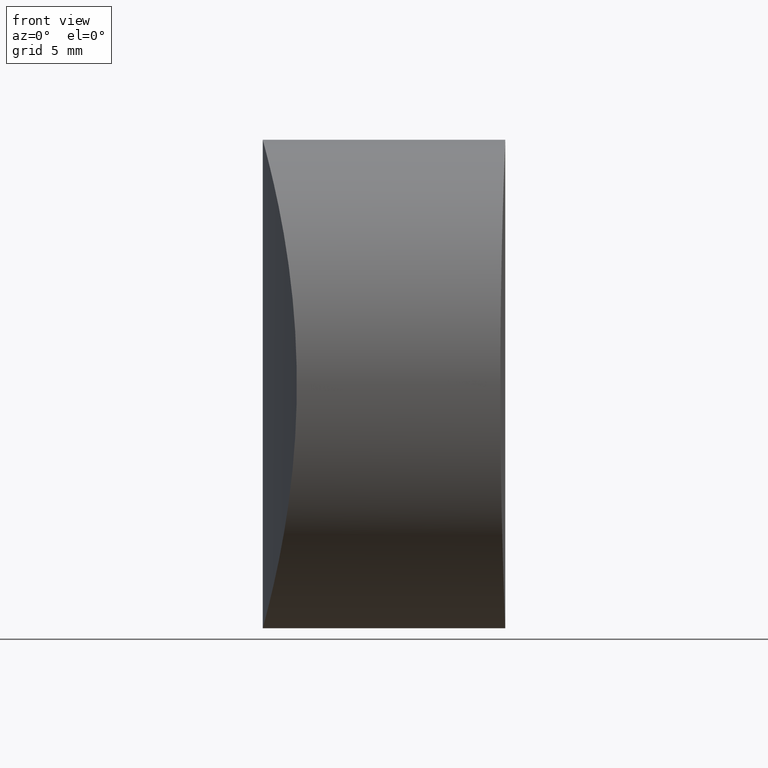
[diagram: clean part render]
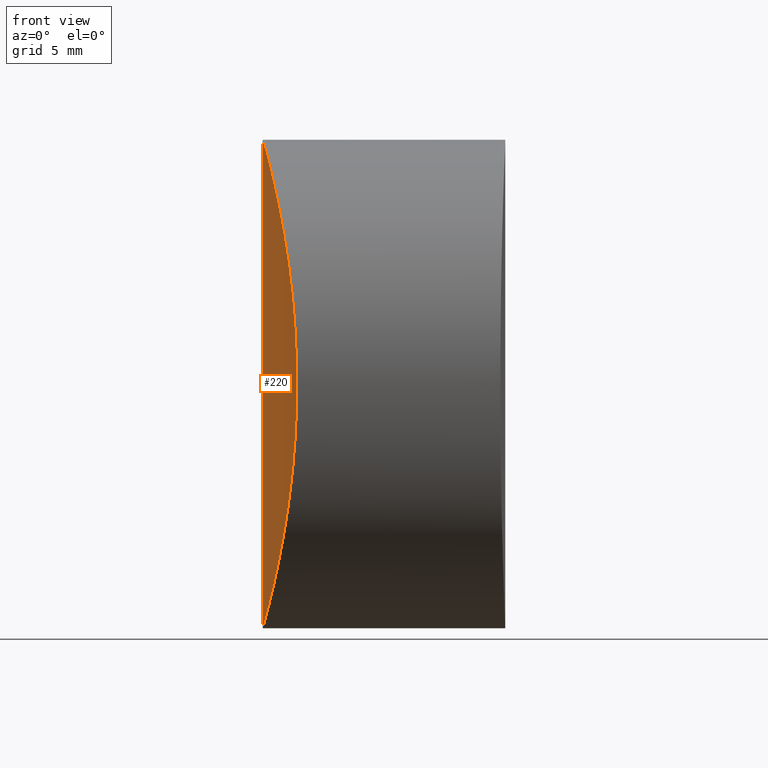
[diagram: same view with one face highlighted and labeled with its STEP entity id]
A machine part, front view. The second image highlights one B-rep face of the part: STEP entity #220.
In plain terms, the highlighted cylindrical surface (partial cylindrical patch) has radius 42.699 mm, axis along (-0, -0, -1).
Its self-contained STEP definition (entity closure, byte-faithful):
#3 = CARTESIAN_POINT ( 'NONE',  ( 0.3116643519996714629, -5.198488700896360726, 1.190362278175256749 ) ) ;
#6 = CARTESIAN_POINT ( 'NONE',  ( 0.02115179972341110770, -1.539396594609847346, 0.07653723740194499914 ) ) ;
#8 = CARTESIAN_POINT ( 'NONE',  ( 0.02116038784417108298, -1.543215929523041430, 23.32345793427557012 ) ) ;
#10 = VERTEX_POINT ( 'NONE', #57 ) ;
#13 = CARTESIAN_POINT ( 'NONE',  ( 1.221814119183032732, -10.15072585469899202, 17.56811078998464026 ) ) ;
#16 = CARTESIAN_POINT ( 'NONE',  ( 1.522361716051486402, -11.30055644154991867, 8.644748249691609487 ) ) ;
#36 = CARTESIAN_POINT ( 'NONE',  ( 0.7029013807431773175, -7.721563527596935650, 2.901477486518047932 ) ) ;
#38 = CARTESIAN_POINT ( 'NONE',  ( 1.020827543885018729, -9.291257141828978661, 4.547890616966048682 ) ) ;
#41 = CARTESIAN_POINT ( 'NONE',  ( 1.549607479163048973, -11.39904056826204481, 14.36420531174572268 ) ) ;
#54 = B_SPLINE_CURVE_WITH_KNOTS ( 'NONE', 3,
 ( #200, #145, #6, #283, #61, #286, #124, #3, #319, #65, #232, #36, #357, #181, #38, #325, #76, #152, #206, #174, #126, #16, #102, #265, #297, #158, #360, #41, #108, #155, #353, #267, #13, #211, #329, #204, #291, #79, #269, #133, #214, #292, #150, #72, #98, #71, #68, #8, #129, #323 ),
 .UNSPECIFIED., .F., .F.,
 ( 4, 2, 2, 2, 2, 2, 2, 2, 2, 2, 2, 2, 2, 2, 2, 2, 2, 2, 2, 2, 2, 2, 2, 2, 4 ),
 ( 0.01836548850541894554, 0.02066126398292433136, 0.02180915172167702254, 0.02295703946042971372, 0.02525281493793509954, 0.02640070267668779072, 0.02754859041544047843, 0.02984436589294586079, 0.03099225363169855196, 0.03214014137045124314, 0.03328802910920393432, 0.03443591684795662550, 0.03673169232546200091, 0.03902746780296738327, 0.04017535554172008139, 0.04132324328047276563, 0.04361901875797814798, 0.04476690649673083916, 0.04591479423548353034, 0.04821056971298891269, 0.04935845745174159693, 0.05050634519049428117, 0.05165423292924697929, 0.05280212066799966353, 0.05509789614550504588 ),
 .UNSPECIFIED. ) ;
#57 = CARTESIAN_POINT ( 'NONE',  ( 2.825357735624603731E-15, 0.000000000000000000, 23.39999999999999858 ) ) ;
#61 = CARTESIAN_POINT ( 'NONE',  ( 0.1064519128507704498, -3.035780601069037132, 0.3941506981484312888 ) ) ;
#65 = CARTESIAN_POINT ( 'NONE',  ( 0.5469979845961249199, -6.820285741709247951, 2.185839507605463528 ) ) ;
#68 = CARTESIAN_POINT ( 'NONE',  ( 0.08243284053290254876, -2.678904931896245678, 23.09572467220113623 ) ) ;
#71 = CARTESIAN_POINT ( 'NONE',  ( 0.1078811615868372209, -3.055596207715884916, 23.00046582037515464 ) ) ;
#72 = CARTESIAN_POINT ( 'NONE',  ( 0.2005206989076388779, -4.148331975707988839, 22.64651442230587719 ) ) ;
#76 = CARTESIAN_POINT ( 'NONE',  ( 1.218775036194221340, -10.13064655305768547, 5.834398369266911466 ) ) ;
#79 = CARTESIAN_POINT ( 'NONE',  ( 0.7036711933648762685, -7.739240291017467577, 20.50737220546450601 ) ) ;
#98 = CARTESIAN_POINT ( 'NONE',  ( 0.1668844223539996119, -3.789355694864593893, 22.77600918019988896 ) ) ;
#102 = CARTESIAN_POINT ( 'NONE',  ( 1.548705905361870583, -11.39579333191930210, 9.021389577117204794 ) ) ;
#108 = CARTESIAN_POINT ( 'NONE',  ( 1.523814740385370126, -11.30584735335096092, 14.73577845390030205 ) ) ;
#115 = LINE ( 'NONE', #247, #368 ) ;
#124 = CARTESIAN_POINT ( 'NONE',  ( 0.1994450068612352300, -4.137499626896718574, 0.7493018810777755112 ) ) ;
#126 = CARTESIAN_POINT ( 'NONE',  ( 1.461437354802844757, -11.07617006637357449, 7.911122091279811031 ) ) ;
#129 = CARTESIAN_POINT ( 'NONE',  ( 2.801984989517225522E-15, -0.7765011190128663365, 23.40000000000000213 ) ) ;
#133 = CARTESIAN_POINT ( 'NONE',  ( 0.4506842129636313143, -6.195859913576227562, 21.63221658213782561 ) ) ;
#144 = EDGE_LOOP ( 'NONE', ( #358, #347 ) ) ;
#145 = CARTESIAN_POINT ( 'NONE',  ( 5.393482291641757409E-16, -0.7765436336446470689, -2.454701481142962383E-15 ) ) ;
#150 = CARTESIAN_POINT ( 'NONE',  ( 0.2749762479042691110, -4.850939060395880631, 22.35378929821485627 ) ) ;
#152 = CARTESIAN_POINT ( 'NONE',  ( 1.308429559035131584, -10.49093614518938011, 6.506201691344067228 ) ) ;
#155 = CARTESIAN_POINT ( 'NONE',  ( 1.462974869590095928, -11.08189049689003269, 15.47224577849542548 ) ) ;
#158 = CARTESIAN_POINT ( 'NONE',  ( 1.634233368835979361, -11.69998044991746866, 12.47683278729245870 ) ) ;
#174 = CARTESIAN_POINT ( 'NONE',  ( 1.426772311235827928, -10.94672059868823055, 7.552220241446521598 ) ) ;
#181 = CARTESIAN_POINT ( 'NONE',  ( 0.9148307797964319033, -8.808348260449010425, 3.961864767983786617 ) ) ;
#187 = AXIS2_PLACEMENT_3D ( 'NONE', #333, #308, #268 ) ;
#200 = CARTESIAN_POINT ( 'NONE',  ( 5.214281190802850347E-16, 2.070248622887366721E-31, -2.123988307714478201E-15 ) ) ;
#204 = CARTESIAN_POINT ( 'NONE',  ( 0.9157846222239869327, -8.799390160919511317, 19.42056987458116524 ) ) ;
#206 = CARTESIAN_POINT ( 'NONE',  ( 1.350269273977950490, -10.65410426107503561, 6.849759677567113236 ) ) ;
#211 = CARTESIAN_POINT ( 'NONE',  ( 1.073035159634678992, -9.514780494102001995, 18.51941654793526126 ) ) ;
#214 = CARTESIAN_POINT ( 'NONE',  ( 0.4035677270769945091, -5.866498795797997268, 21.83013036535875528 ) ) ;
#220 = ADVANCED_FACE ( 'NONE', ( #241 ), #271, .T. ) ;
#221 = CARTESIAN_POINT ( 'NONE',  ( 5.214281190802850347E-16, 2.070248622887366721E-31, -2.123988307714478201E-15 ) ) ;
#232 = CARTESIAN_POINT ( 'NONE',  ( 0.5984160714061161901, -7.129914124341361514, 2.415557835255714991 ) ) ;
#240 = EDGE_CURVE ( 'NONE', #10, #258, #115, .T. ) ;
#241 = FACE_OUTER_BOUND ( 'NONE', #144, .T. ) ;
#247 = CARTESIAN_POINT ( 'NONE',  ( 0.000000000000000000, 0.000000000000000000, 23.39999999999999858 ) ) ;
#258 = VERTEX_POINT ( 'NONE', #221 ) ;
#265 = CARTESIAN_POINT ( 'NONE',  ( 1.612214532834173042, -11.62348897410736015, 10.15703470085185955 ) ) ;
#267 = CARTESIAN_POINT ( 'NONE',  ( 1.312541627068786187, -10.50989852101694133, 16.89792702999298513 ) ) ;
#268 = DIRECTION ( 'NONE',  ( -1.000000000000000000, 0.000000000000000000, 0.000000000000000000 ) ) ;
#269 = CARTESIAN_POINT ( 'NONE',  ( 0.5984887967096099715, -7.153224521909646860, 20.99041463831230203 ) ) ;
#271 = CYLINDRICAL_SURFACE ( 'NONE', #187, 42.69899999999999807 ) ;
#279 = DIRECTION ( 'NONE',  ( -0.000000000000000000, -0.000000000000000000, -1.000000000000000000 ) ) ;
#283 = CARTESIAN_POINT ( 'NONE',  ( 0.08153988786952012791, -2.664143682556236126, 0.3009432163908508095 ) ) ;
#286 = CARTESIAN_POINT ( 'NONE',  ( 0.1653638723635256491, -3.772388391425766319, 0.6181554731064370367 ) ) ;
#291 = CARTESIAN_POINT ( 'NONE',  ( 0.8626066301634506273, -8.543741043546008385, 19.70239966152351485 ) ) ;
#292 = CARTESIAN_POINT ( 'NONE',  ( 0.3157975377854589372, -5.194569117977690276, 22.19055770771102587 ) ) ;
#297 = CARTESIAN_POINT ( 'NONE',  ( 1.634244506979429579, -11.70001954266957256, 10.92375621805154040 ) ) ;
#307 = EDGE_CURVE ( 'NONE', #258, #10, #54, .T. ) ;
#308 = DIRECTION ( 'NONE',  ( -0.000000000000000000, -0.000000000000000000, -1.000000000000000000 ) ) ;
#319 = CARTESIAN_POINT ( 'NONE',  ( 0.4003814286850754800, -5.868845710964835760, 1.549687693706004676 ) ) ;
#323 = CARTESIAN_POINT ( 'NONE',  ( 2.825357735624603731E-15, 0.000000000000000000, 23.39999999999999858 ) ) ;
#325 = CARTESIAN_POINT ( 'NONE',  ( 1.170788727983580246, -9.932799149085859369, 5.505080061894500609 ) ) ;
#329 = CARTESIAN_POINT ( 'NONE',  ( 1.021034098969987980, -9.285123201244267932, 18.82902191959688309 ) ) ;
#333 = CARTESIAN_POINT ( 'NONE',  ( 42.69899999999999807, 0.000000000000000000, 23.39999999999999858 ) ) ;
#347 = ORIENTED_EDGE ( 'NONE', *, *, #240, .T. ) ;
#353 = CARTESIAN_POINT ( 'NONE',  ( 1.427849256646841924, -10.95078960456874384, 15.83724668339592867 ) ) ;
#357 = CARTESIAN_POINT ( 'NONE',  ( 0.7558857188859865461, -8.003409540714521597, 3.157203636385723211 ) ) ;
#358 = ORIENTED_EDGE ( 'NONE', *, *, #307, .T. ) ;
#360 = CARTESIAN_POINT ( 'NONE',  ( 1.612205473852018178, -11.62342614762448001, 13.23961939153525336 ) ) ;
#368 = VECTOR ( 'NONE', #279, 1000.000000000000000 ) ;